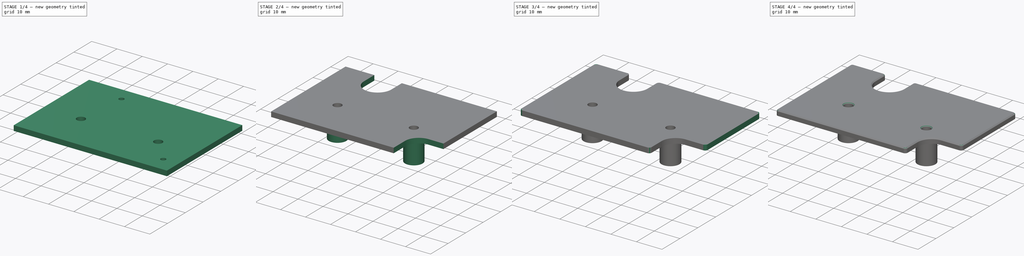
[diagram: build sequence overview — one tinted view per stage of 4, left to right]
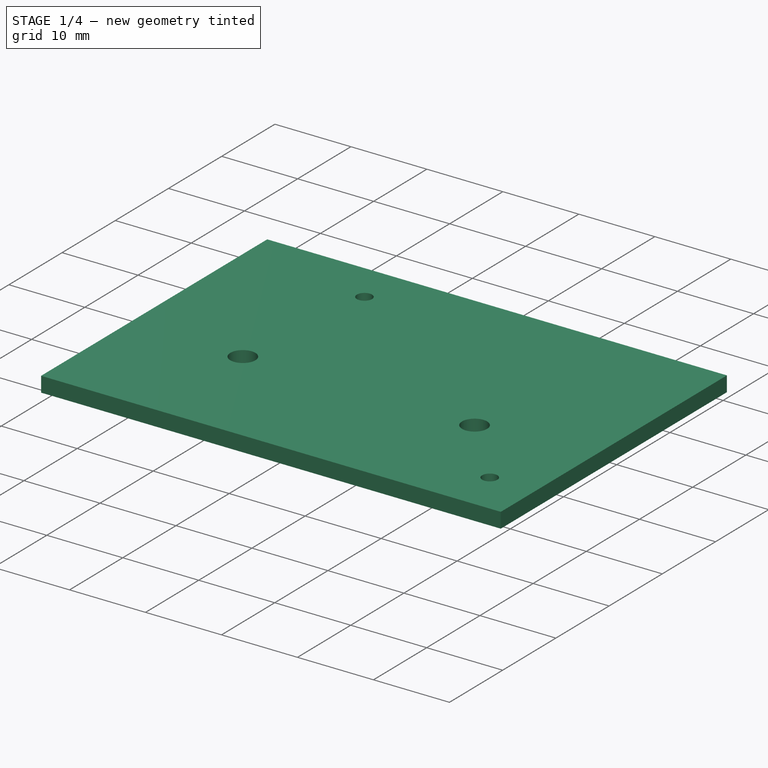
[diagram: stage 1 of 4 — iso view after this stage's code; geometry added in this stage tinted green]
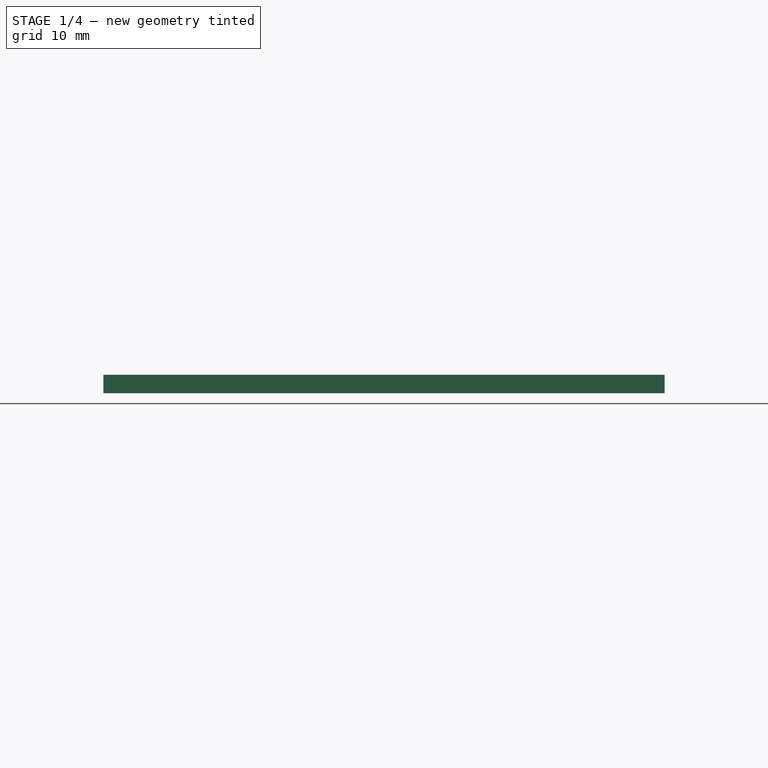
[diagram: stage 1 of 4 — front view after this stage's code; geometry added in this stage tinted green]
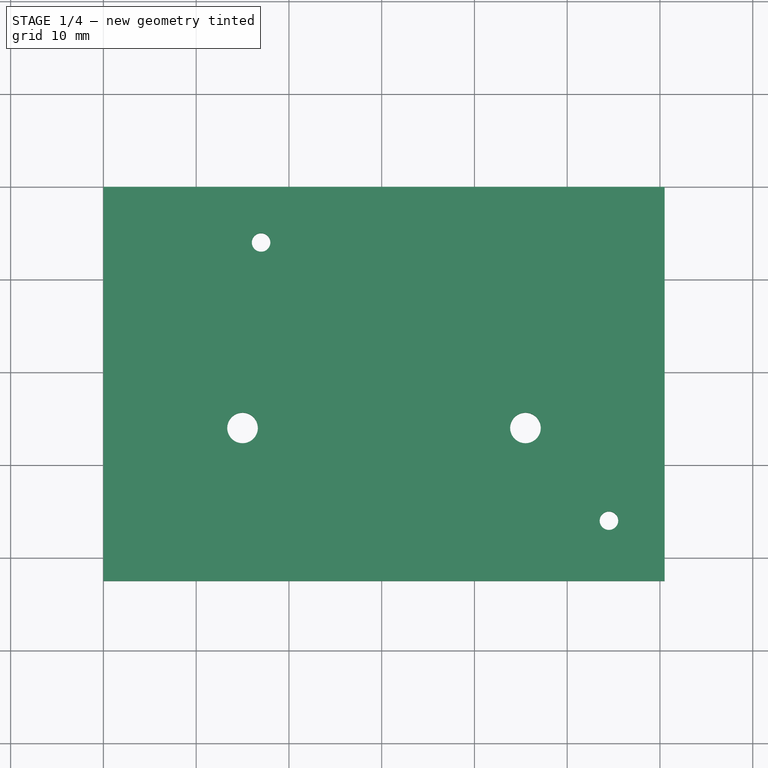
[diagram: stage 1 of 4 — top view after this stage's code; geometry added in this stage tinted green]
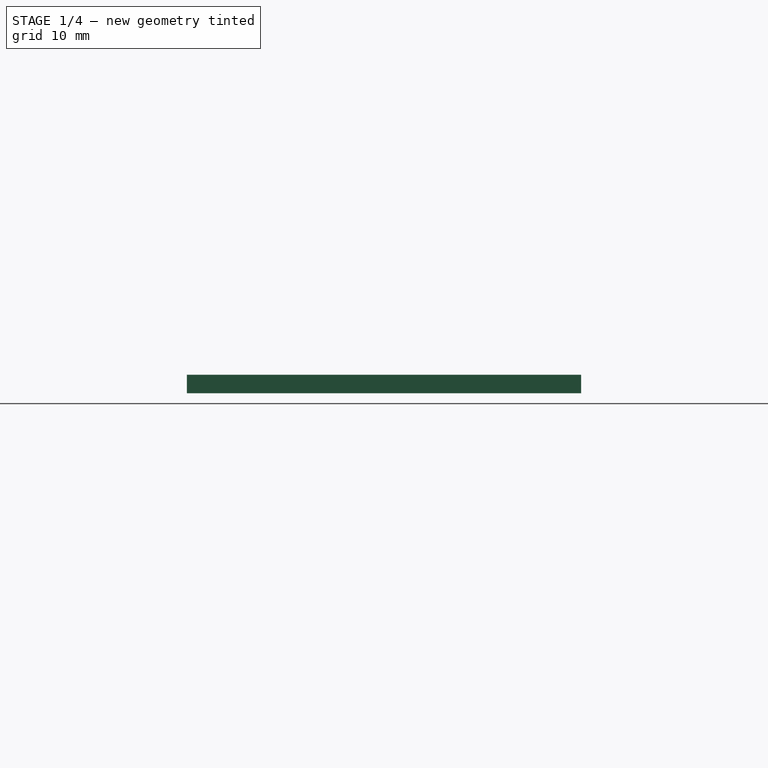
[diagram: stage 1 of 4 — right view after this stage's code; geometry added in this stage tinted green]
FCSTD DOCUMENT  (FreeCAD 0.21R33675 (Git))
Label: psu-cover
License: All rights reserved
LicenseURL: http://en.wikipedia.org/wiki/All_rights_reserved
objects: Part::Feature×23, App::Part×23, Sketcher::SketchObject×4, PartDesign::Pad×4, PartDesign::Pocket×2, PartDesign::Chamfer×2, App::DocumentObjectGroup×1, PartDesign::Fillet×1, PartDesign::Body×1
note: 46 computed .brp shape members not serialized (recipe doc carries the construction recipe); baked Part::Feature solids carry a one-line shape summary decoded from their .brp

FEATURE [Part::Feature] Part__Feature  label="SOLID"
  shape: bbox 2 x 1.2 x 0.45 mm, 26 faces (baked)
FEATURE [App::Part] R_0805_2012Metric
  Group = -> [Part__Feature]
  Origin = -> Origin
  Placement = pos=(129.475,-66,1.65) rot=(0,0,1;3.14159rad)
FEATURE [Part::Feature] Part__Feature001  label="SOLID001"
  shape: bbox 2 x 1.25 x 1.1 mm, 50 faces (baked)
FEATURE [App::Part] LED_0805_2012Metric
  Group = -> [Part__Feature001]
  Origin = -> Origin001
  Placement = pos=(146.5,-74.5,1.65) rot=(0,0,1;0rad)
FEATURE [Part::Feature] Part__Feature002  label="SOLID002"
  shape: bbox 2 x 1.2 x 0.45 mm, 26 faces (baked)
FEATURE [App::Part] R_0805_2012Metric001
  Group = -> [Part__Feature002]
  Origin = -> Origin002
  Placement = pos=(104.475,-66.5,1.65) rot=(0,0,1;3.14159rad)
FEATURE [Part::Feature] Part__Feature003  label="SOLID003"
  shape: bbox 2 x 1.2 x 0.45 mm, 26 faces (baked)
FEATURE [App::Part] R_0805_2012Metric002
  Group = -> [Part__Feature003]
  Origin = -> Origin003
  Placement = pos=(113.025,-57.5,1.65) rot=(0,0,1;0rad)
FEATURE [Part::Feature] Part__Feature004  label="SOLID004"
  shape: bbox 2 x 1.2 x 0.45 mm, 26 faces (baked)
FEATURE [App::Part] R_0805_2012Metric003
  Group = -> [Part__Feature004]
  Origin = -> Origin004
  Placement = pos=(150.5,-74.5,1.65) rot=(0,0,1;0rad)
FEATURE [Part::Feature] Part__Feature005  label="SOLID005"
  shape: bbox 2 x 1.2 x 0.45 mm, 26 faces (baked)
FEATURE [App::Part] R_0805_2012Metric004
  Group = -> [Part__Feature005]
  Origin = -> Origin005
  Placement = pos=(99.975,-66.5,1.65) rot=(0,0,1;0rad)
FEATURE [Part::Feature] Part__Feature006  label="SOLID006"
  shape: bbox 7.874 x 4.93 x 6.98 mm, 80 faces (baked)
FEATURE [App::Part] DIP_4_W7_62mm  label="DIP-4_W7.62mm"
  Group = -> [Part__Feature006]
  Origin = -> Origin006
  Placement = pos=(108.5,-60.46,1.65) rot=(0,0,1;0rad)
FEATURE [Part::Feature] Part__Feature007  label="SOLID007"
  shape: bbox 7.874 x 4.93 x 6.98 mm, 80 faces (baked)
FEATURE [App::Part] DIP_4_W7_62mm001  label="DIP-4_W7.62mm001"
  Group = -> [Part__Feature007]
  Origin = -> Origin007
  Placement = pos=(143.88,-63,1.65) rot=(0,0,1;0rad)
FEATURE [Part::Feature] Part__Feature008  label="SOLID008"
  shape: bbox 7.874 x 4.93 x 6.98 mm, 80 faces (baked)
FEATURE [App::Part] DIP_4_W7_62mm002  label="DIP-4_W7.62mm002"
  Group = -> [Part__Feature008]
  Origin = -> Origin008
  Placement = pos=(133.38,-63,1.65) rot=(0,0,1;0rad)
FEATURE [Part::Feature] Part__Feature009  label="SOLID009"
  shape: bbox 7.874 x 4.93 x 6.98 mm, 80 faces (baked)
FEATURE [App::Part] DIP_4_W7_62mm003  label="DIP-4_W7.62mm003"
  Group = -> [Part__Feature009]
  Origin = -> Origin009
  Placement = pos=(97,-69.5,1.65) rot=(0,0,1;0rad)
FEATURE [Part::Feature] Part__Feature010  label="SOLID010"
  shape: bbox 2 x 1.25 x 1.25 mm, 28 faces (baked)
FEATURE [App::Part] C_0805_2012Metric
  Group = -> [Part__Feature010]
  Origin = -> Origin010
  Placement = pos=(129.5,-62.5,1.65) rot=(0,0,1;0rad)
FEATURE [Part::Feature] Part__Feature011  label="SOLID011"
  shape: bbox 12.36 x 12.78 x 12 mm, 48 faces (baked)
FEATURE [App::Part] CP_Radial_D10_0mm_P5_00mm  label="CP_Radial_D10.0mm_P5.00mm"
  Group = -> [Part__Feature011]
  Origin = -> Origin011
  Placement = pos=(112,-53.5,1.65) rot=(0,0,1;1.5708rad)
FEATURE [Part::Feature] Part__Feature012  label="SOLID012"
  shape: bbox 12.36 x 12.78 x 12 mm, 48 faces (baked)
FEATURE [App::Part] CP_Radial_D10_0mm_P5_00mm001  label="CP_Radial_D10.0mm_P5.00mm001"
  Group = -> [Part__Feature012]
  Origin = -> Origin012
  Placement = pos=(149.5,-78.5,1.65) rot=(0,0,-1;1.5708rad)
FEATURE [Part::Feature] Part__Feature013  label="SOLID013"
  shape: bbox 3.8 x 1.6 x 1.25 mm, 67 faces (baked)
FEATURE [App::Part] D_SOD_123  label="D_SOD-123"
  Group = -> [Part__Feature013]
  Origin = -> Origin013
  Placement = pos=(98,-83.4,1.65) rot=(0,0,-1;1.5708rad)
FEATURE [Part::Feature] Part__Feature014  label="SOLID014"
  shape: bbox 2.54 x 5.08 x 11.54 mm, 52 faces (baked)
FEATURE [App::Part] PinHeader_1x02_P2_54mm_Vertical  label="PinHeader_1x02_P2.54mm_Vertical"
  Group = -> [Part__Feature014]
  Origin = -> Origin014
  Placement = pos=(119.5,-72.5,1.65) rot=(0,0,1;1.5708rad)
FEATURE [Part::Feature] Part__Feature015  label="SOLID015"
  shape: bbox 2 x 1.2 x 0.45 mm, 26 faces (baked)
FEATURE [App::Part] R_0805_2012Metric005
  Group = -> [Part__Feature015]
  Origin = -> Origin015
  Placement = pos=(99,-75,1.65) rot=(0,0,1;0rad)
FEATURE [Part::Feature] Part__Feature016  label="SOLID016"
  shape: bbox 2 x 1.2 x 0.45 mm, 26 faces (baked)
FEATURE [App::Part] R_0805_2012Metric006
  Group = -> [Part__Feature016]
  Origin = -> Origin016
  Placement = pos=(124,-68,1.65) rot=(0,0,1;1.5708rad)
FEATURE [Part::Feature] Part__Feature017  label="SOLID017"
  shape: bbox 7.874 x 9.27 x 6.98 mm, 148 faces (baked)
FEATURE [App::Part] DIP_8_W7_62mm  label="DIP-8_W7.62mm"
  Group = -> [Part__Feature017]
  Origin = -> Origin017
  Placement = pos=(101.5,-77.5,1.65) rot=(0,0,1;0rad)
FEATURE [Part::Feature] Part__Feature018  label="SOLID018"
  shape: bbox 7.874 x 4.93 x 6.98 mm, 80 faces (baked)
FEATURE [App::Part] DIP_4_W7_62mm004  label="DIP-4_W7.62mm004"
  Group = -> [Part__Feature018]
  Origin = -> Origin018
  Placement = pos=(127,-69,1.65) rot=(0,0,1;0rad)
FEATURE [Part::Feature] Part__Feature019  label="SOLID019"
  shape: bbox 2 x 1.2 x 0.45 mm, 26 faces (baked)
FEATURE [App::Part] R_0805_2012Metric007
  Group = -> [Part__Feature019]
  Origin = -> Origin019
  Placement = pos=(115.75,-65.75,1.65) rot=(0,0,1;3.14159rad)
FEATURE [Part::Feature] Part__Feature020  label="SOLID020"
  shape: bbox 2 x 1.2 x 0.45 mm, 26 faces (baked)
FEATURE [App::Part] R_0805_2012Metric008
  Group = -> [Part__Feature020]
  Origin = -> Origin020
  Placement = pos=(126.25,-63.025,1.65) rot=(0,0,1;1.5708rad)
FEATURE [Part::Feature] Part__Feature021  label="SOLID021"
  shape: bbox 2 x 1.25 x 1.25 mm, 28 faces (baked)
FEATURE [App::Part] C_0805_2012Metric001
  Group = -> [Part__Feature021]
  Origin = -> Origin021
  Placement = pos=(120.025,-67,1.65) rot=(0,0,1;3.14159rad)
FEATURE [Part::Feature] Part__Feature022  label="COMPOUND"
  shape: bbox 60.5 x 42.5 x 1.6 mm, 74 faces (baked)
FEATURE [App::Part] Open_CASCADE_STEP_translator_7_5_1  label="Open CASCADE STEP translator 7.5 1"
  Group = -> [R_0805_2012Metric,LED_0805_2012Metric,R_0805_2012Metric001,R_0805_2012Metric002,R_0805_2012Metric003,R_0805_2012Metric004,DIP_4_W7_62mm,DIP_4_W7_62mm001,DIP_4_W7_62mm002,DIP_4_W7_62mm003,C_0805_2012Metric,CP_Radial_D10_0mm_P5_00mm,CP_Radial_D10_0mm_P5_00mm001,D_SOD_123,PinHeader_1x02_P2_54mm_Vertical,R_0805_2012Metric005,R_0805_2012Metric006,DIP_8_W7_62mm,DIP_4_W7_62mm004,R_0805_2012Metric007,+3 more]
  Origin = -> Origin022
FEATURE [App::DocumentObjectGroup] Measurements
FEATURE [Sketcher::SketchObject] Sketch
  FullyConstrained = true
  MapMode = 5
  Support = -> [XY_Plane023]
  sketch-geometry (4):
    g0: LineSegment StartX=0 StartY=0 StartZ=0 EndX=60.5 EndY=0 EndZ=0
    g1: LineSegment StartX=60.5 StartY=0 StartZ=0 EndX=60.5 EndY=-42.5 EndZ=0
    g2: LineSegment StartX=60.5 StartY=-42.5 StartZ=0 EndX=0 EndY=-42.5 EndZ=0
    g3: LineSegment StartX=0 StartY=-42.5 StartZ=0 EndX=0 EndY=0 EndZ=0
  constraints (11):
    c: Coincident(g0,g1)
    c: Coincident(g1,g2)
    c: Coincident(g2,g3)
    c: Coincident(g3,g0)
    c: Horizontal(g0)
    c: Horizontal(g2)
    c: Vertical(g1)
    c: Vertical(g3)
    c: Coincident(g0,g-1)
    c: DistanceX(g0,g0) = 60.5
    c: DistanceY(g1,g1) = 42.5
FEATURE [PartDesign::Pad] Pad
  Direction = (0,0,1)
  Length = 2
  Length2 = 10
  Profile = -> Sketch
  ReferenceAxis = -> Sketch [N_Axis]
  Type = 0
FEATURE [Sketcher::SketchObject] Sketch001
  ExternalGeometry = -> [Pad]
  FullyConstrained = true
  MapMode = 5
  Placement = pos=(0,0,2) rot=(0,0,1;0rad)
  Support = -> [Pad]
  sketch-geometry (4):
    g0: Circle CenterX=17 CenterY=-6 CenterZ=0 NormalX=0 NormalY=0 NormalZ=1 AngleXU=0 Radius=1
    g1: Circle CenterX=54.5 CenterY=-36 CenterZ=0 NormalX=0 NormalY=0 NormalZ=1 AngleXU=0 Radius=1
    g2: Circle CenterX=15 CenterY=-26 CenterZ=0 NormalX=0 NormalY=0 NormalZ=1 AngleXU=0 Radius=1.65
    g3: Circle CenterX=45.5 CenterY=-26 CenterZ=0 NormalX=0 NormalY=0 NormalZ=1 AngleXU=0 Radius=1.65
  constraints (12):
    c: DistanceX(g-1,g0) = 17
    c: DistanceX(g1,g-3) = 6
    c: DistanceY(g-3,g1) = 6.5
    c: DistanceY(g0,g-1) = 6
    c: Radius(g0) = 1
    c: Equal(g0,g1)
    c: Horizontal(g3,g2)
    c: DistanceY(g-3,g3) = 16.5
    c: Equal(g2,g3)
    c: Radius(g3) = 1.65
    c: DistanceX(g-4,g2) = 15
    c: DistanceX(g3,g-4) = 15
FEATURE [PartDesign::Pocket] Pocket
  BaseFeature = -> Pad
  Direction = (0,0,-1)
  Length = 5
  Length2 = 5
  Profile = -> Sketch001
  ReferenceAxis = -> Sketch001 [N_Axis]
  Type = 1
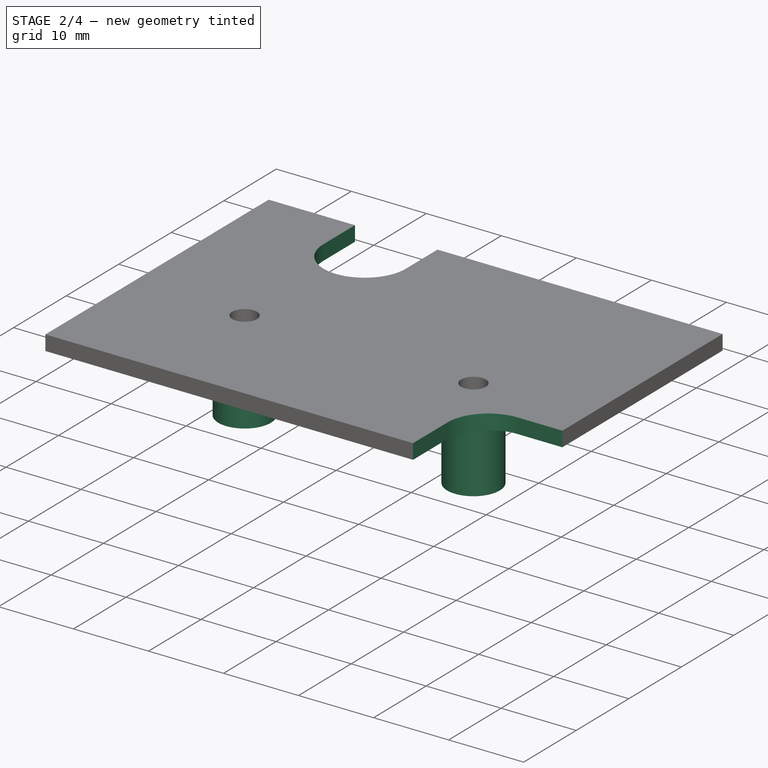
[diagram: stage 2 of 4 — iso view after this stage's code; geometry added in this stage tinted green]
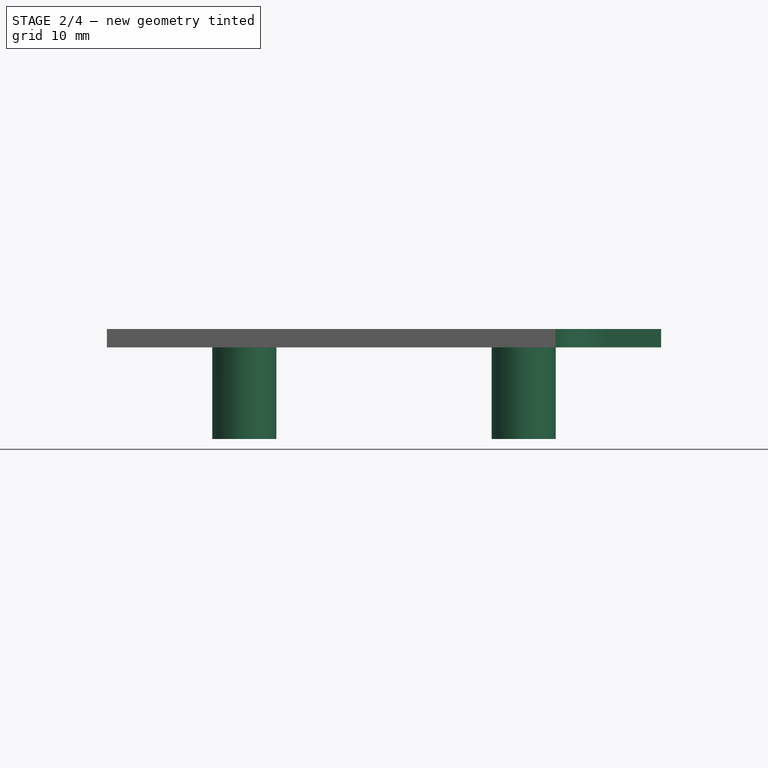
[diagram: stage 2 of 4 — front view after this stage's code; geometry added in this stage tinted green]
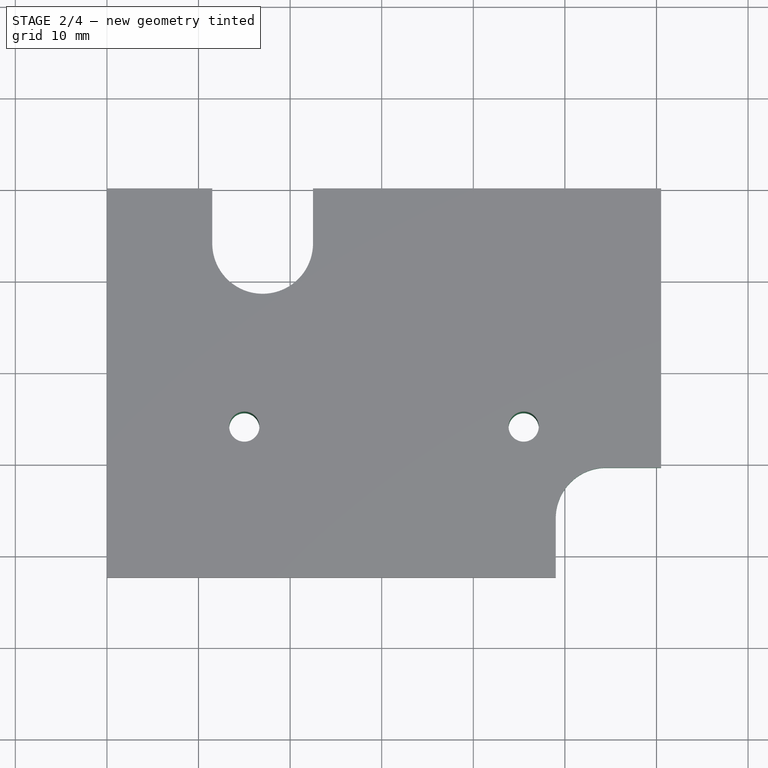
[diagram: stage 2 of 4 — top view after this stage's code; geometry added in this stage tinted green]
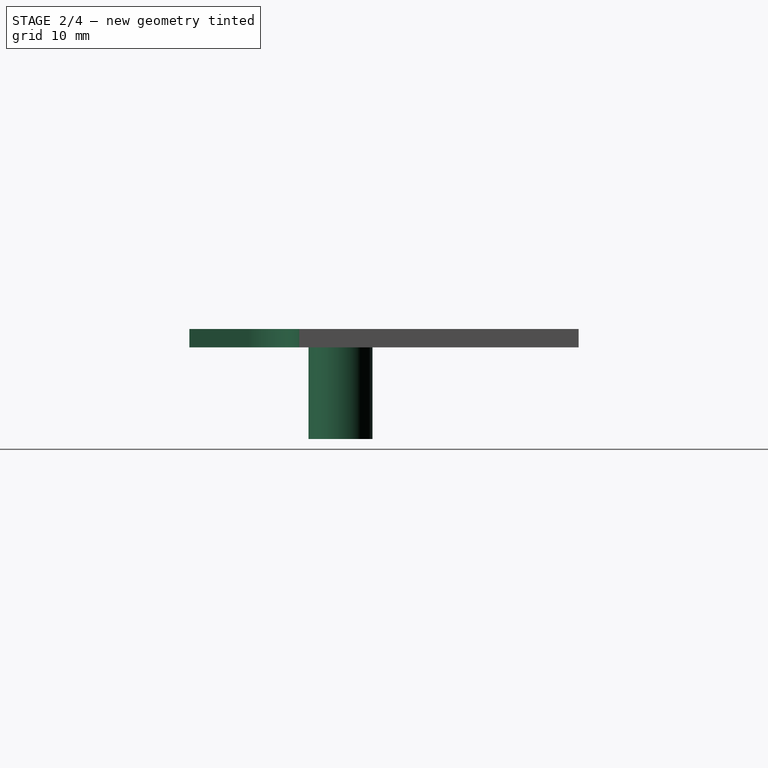
[diagram: stage 2 of 4 — right view after this stage's code; geometry added in this stage tinted green]
FEATURE [Sketcher::SketchObject] Sketch002
  ExternalGeometry = -> [Pocket]
  FullyConstrained = true
  MapMode = 5
  Placement = pos=(0,0,2) rot=(0,0,1;0rad)
  Support = -> [Pocket]
  sketch-geometry (9):
    g0: ArcOfCircle CenterX=17 CenterY=-6 CenterZ=0 NormalX=0 NormalY=0 NormalZ=1 AngleXU=0 Radius=5.5 StartAngle=3.14159 EndAngle=6.28319
    g1: ArcOfCircle CenterX=54.5 CenterY=-36 CenterZ=0 NormalX=0 NormalY=0 NormalZ=1 AngleXU=0 Radius=5.5 StartAngle=1.5708 EndAngle=3.14159
    g2: LineSegment StartX=11.5 StartY=-6 StartZ=0 EndX=11.5 EndY=0 EndZ=0
    g3: LineSegment StartX=22.5 StartY=-6 StartZ=0 EndX=22.5 EndY=0 EndZ=0
    g4: LineSegment StartX=22.5 StartY=0 StartZ=0 EndX=11.5 EndY=0 EndZ=0
    g5: LineSegment StartX=54.5 StartY=-30.5 StartZ=0 EndX=60.5 EndY=-30.5 EndZ=0
    g6: LineSegment StartX=49 StartY=-36 StartZ=0 EndX=49 EndY=-42.5 EndZ=0
    g7: LineSegment StartX=49 StartY=-42.5 StartZ=0 EndX=60.5 EndY=-42.5 EndZ=0
    g8: LineSegment StartX=60.5 StartY=-42.5 StartZ=0 EndX=60.5 EndY=-30.5 EndZ=0
  constraints (26):
    c: Coincident(g0,g-6)
    c: Coincident(g1,g-5)
    c: Horizontal(g0,g0)
    c: Horizontal(g0,g0)
    c: Vertical(g1,g1)
    c: Horizontal(g1,g1)
    c: Coincident(g2,g0)
    c: PointOnObject(g2,g-1)
    c: Coincident(g3,g0)
    c: PointOnObject(g3,g-1)
    c: Vertical(g3)
    c: Coincident(g4,g3)
    c: Coincident(g4,g2)
    c: Coincident(g5,g1)
    c: PointOnObject(g5,g-4)
    c: Horizontal(g5)
    c: Coincident(g6,g1)
    c: PointOnObject(g6,g-3)
    c: Vertical(g6)
    c: Coincident(g7,g6)
    c: Coincident(g7,g-4)
    c: Coincident(g8,g7)
    c: Coincident(g8,g5)
    c: Vertical(g2)
    c: Equal(g1,g0)
    c: Radius(g1) = 5.5
FEATURE [PartDesign::Pocket] Pocket001
  BaseFeature = -> Pocket
  Direction = (0,0,-1)
  Length = 5
  Length2 = 5
  Profile = -> Sketch002
  ReferenceAxis = -> Sketch002 [N_Axis]
  Type = 1
FEATURE [Sketcher::SketchObject] Sketch003
  ExternalGeometry = -> [Pocket001]
  FullyConstrained = true
  MapMode = 5
  Placement = pos=(0,0,0) rot=(1,0,0;3.14159rad)
  Support = -> [Pocket001]
  sketch-geometry (4):
    g0: Circle CenterX=15 CenterY=26 CenterZ=0 NormalX=0 NormalY=0 NormalZ=1 AngleXU=0 Radius=1.65
    g1: Circle CenterX=45.5 CenterY=26 CenterZ=0 NormalX=0 NormalY=0 NormalZ=1 AngleXU=0 Radius=1.65
    g2: Circle CenterX=45.5 CenterY=26 CenterZ=0 NormalX=0 NormalY=0 NormalZ=1 AngleXU=0 Radius=3.5
    g3: Circle CenterX=15 CenterY=26 CenterZ=0 NormalX=0 NormalY=0 NormalZ=1 AngleXU=0 Radius=3.5
  constraints (8):
    c: Coincident(g0,g-3)
    c: Coincident(g1,g-4)
    c: Coincident(g2,g1)
    c: Coincident(g3,g0)
    c: Equal(g0,g1)
    c: Equal(g1,g-4)
    c: Equal(g3,g2)
    c: Radius(g2) = 3.5
FEATURE [PartDesign::Pad] Pad001
  BaseFeature = -> Pocket001
  Direction = (0,0,-1)
  Length = 10
  Length2 = 10
  Profile = -> Sketch003
  ReferenceAxis = -> Sketch003 [N_Axis]
  Type = 0
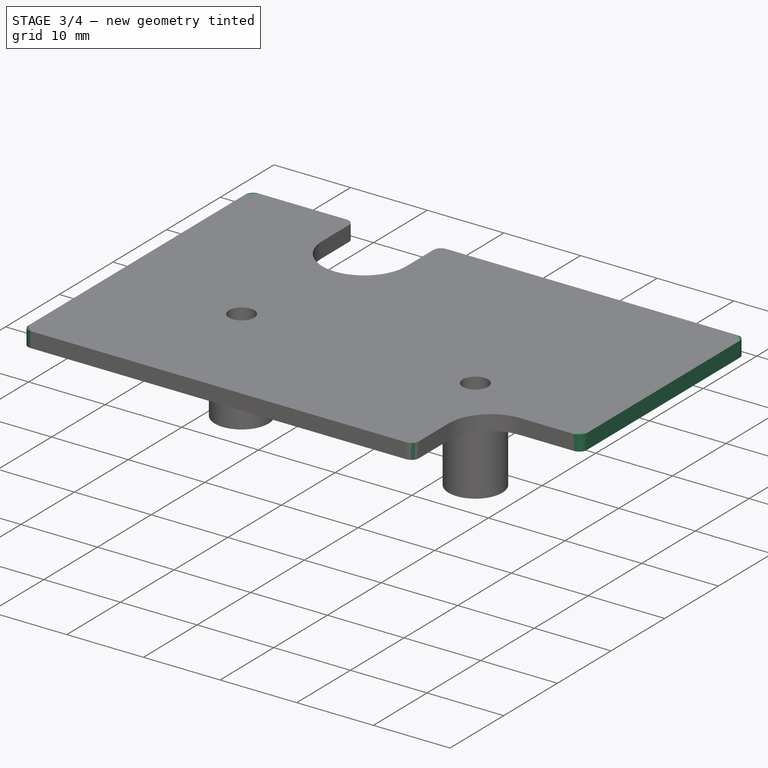
[diagram: stage 3 of 4 — iso view after this stage's code; geometry added in this stage tinted green]
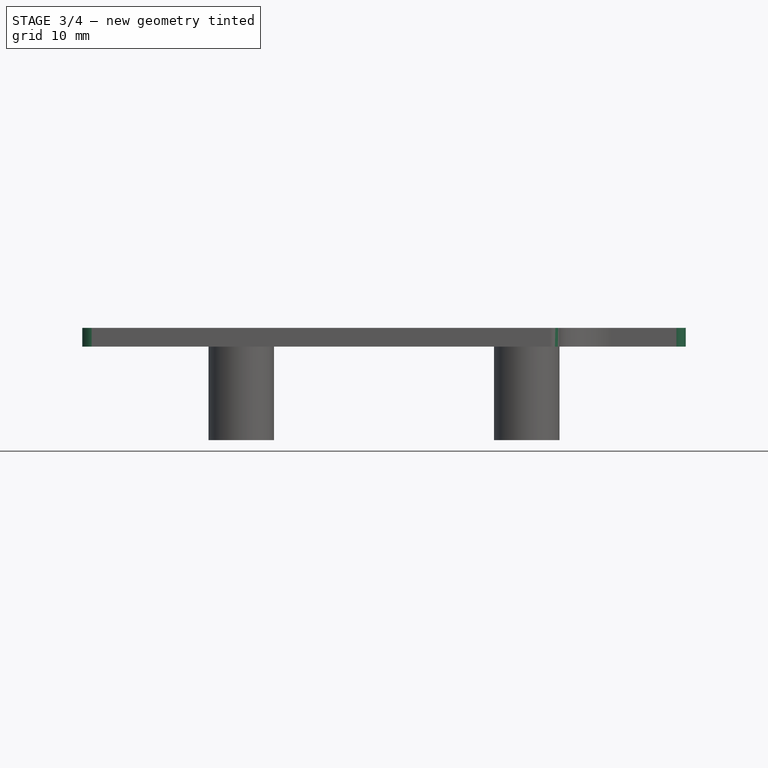
[diagram: stage 3 of 4 — front view after this stage's code; geometry added in this stage tinted green]
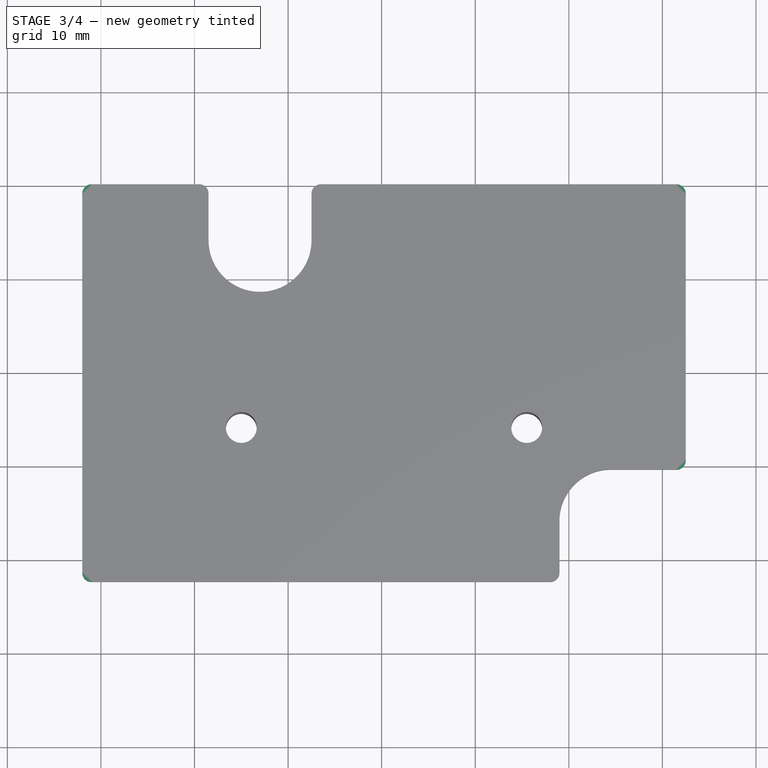
[diagram: stage 3 of 4 — top view after this stage's code; geometry added in this stage tinted green]
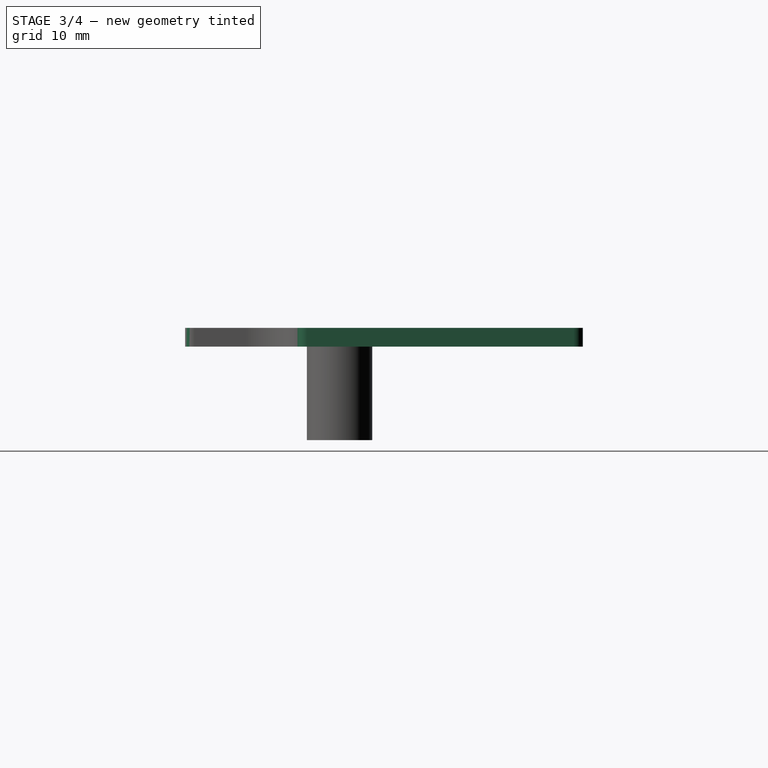
[diagram: stage 3 of 4 — right view after this stage's code; geometry added in this stage tinted green]
FEATURE [PartDesign::Pad] Pad002
  BaseFeature = -> Pad001
  Direction = (-1,0,0)
  Length = 2
  Length2 = 10
  Profile = -> Pad001 [Face5]
  Type = 0
FEATURE [PartDesign::Pad] Pad003
  BaseFeature = -> Pad002
  Direction = (1,0,0)
  Length = 2
  Length2 = 10
  Profile = -> Pad002 [Face14]
  Refine = true
  Type = 0
FEATURE [PartDesign::Fillet] Fillet
  Base = -> Pad003 [Edge2,Edge7,Edge15,Edge18,Edge21,Edge30,Edge1]
  BaseFeature = -> Pad003
  Radius = 1
  SupportTransform = false
  UseAllEdges = false
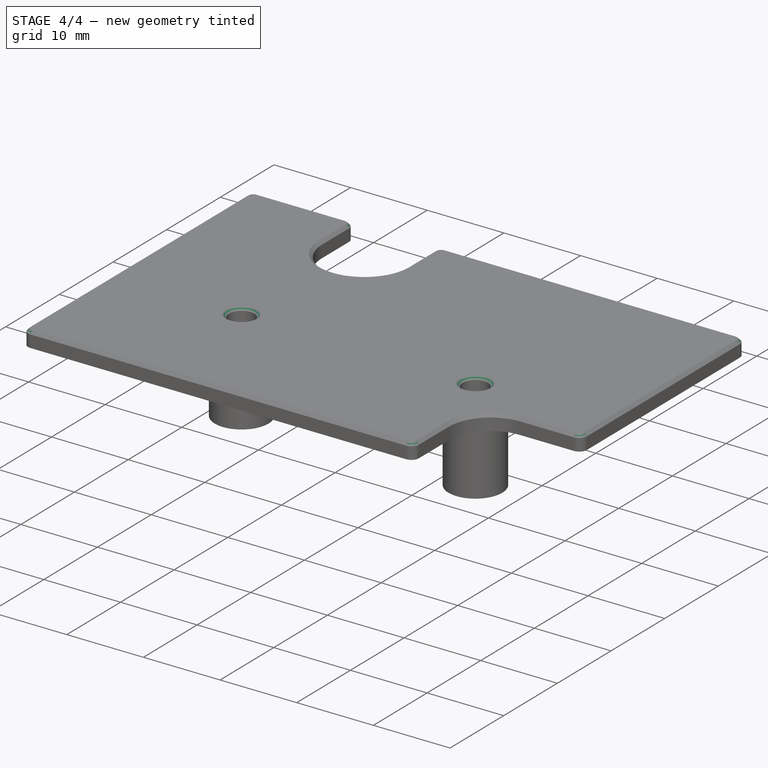
[diagram: stage 4 of 4 — iso view after this stage's code; geometry added in this stage tinted green]
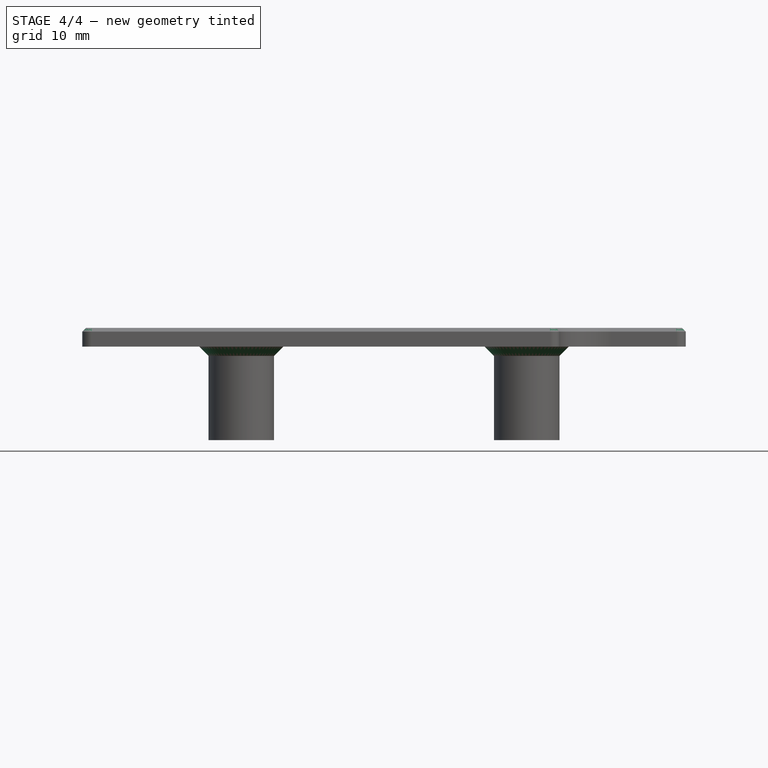
[diagram: stage 4 of 4 — front view after this stage's code; geometry added in this stage tinted green]
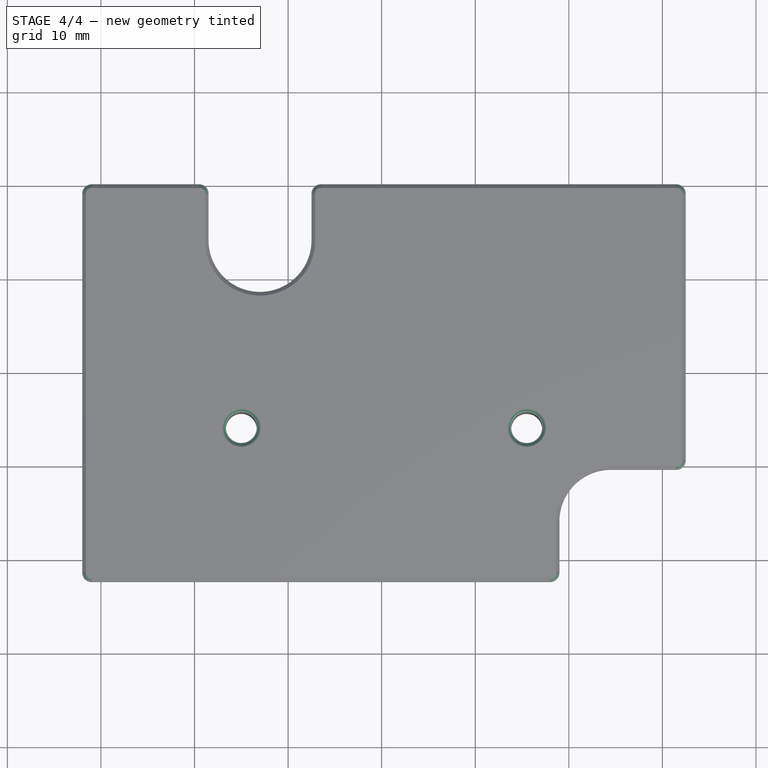
[diagram: stage 4 of 4 — top view after this stage's code; geometry added in this stage tinted green]
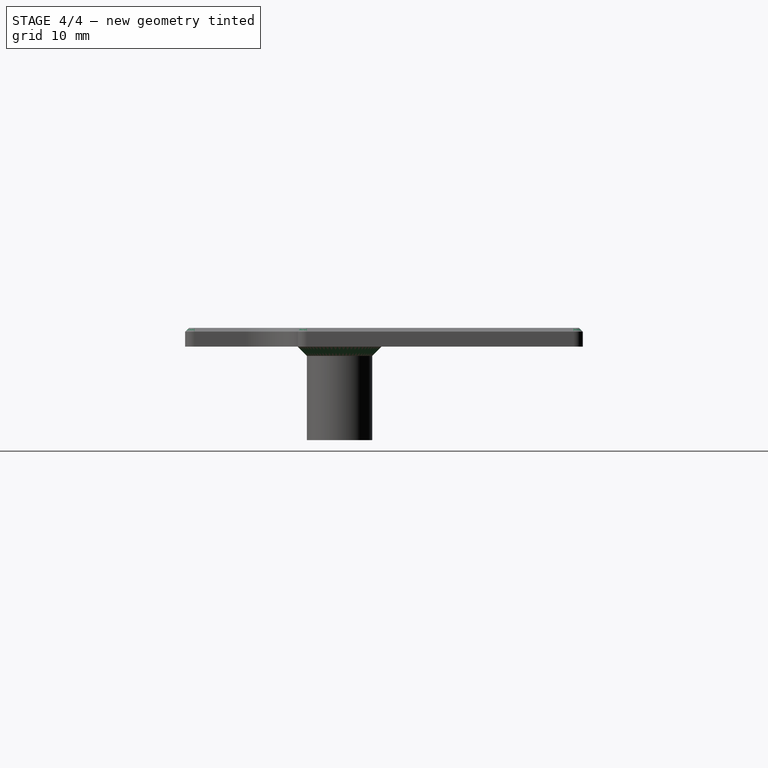
[diagram: stage 4 of 4 — right view after this stage's code; geometry added in this stage tinted green]
FEATURE [PartDesign::Chamfer] Chamfer
  Angle = 45
  Base = -> Fillet [Face5]
  BaseFeature = -> Fillet
  ChamferType = 0
  FlipDirection = false
  Size = 0.4
  Size2 = 1
  SupportTransform = false
  UseAllEdges = false
FEATURE [PartDesign::Chamfer] Chamfer001
  Angle = 45
  Base = -> Chamfer [Edge27,Edge28]
  BaseFeature = -> Chamfer
  ChamferType = 0
  FlipDirection = false
  Size = 1
  Size2 = 1
  SupportTransform = false
  UseAllEdges = false
FEATURE [PartDesign::Body] Body  label="psu-cover"
  Group = -> [Sketch,Pad,Sketch001,Pocket,Sketch002,Pocket001,Sketch003,Pad001,Pad002,Pad003,Fillet,Chamfer,Chamfer001]
  Origin = -> Origin023
  Tip = -> Chamfer001
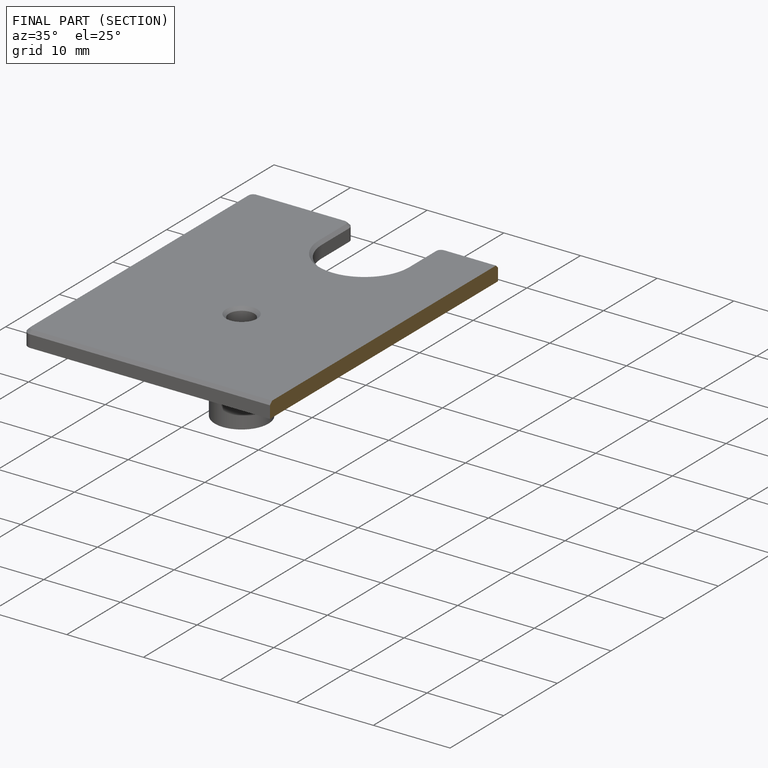
[diagram: finished part — half-section view (interior)]
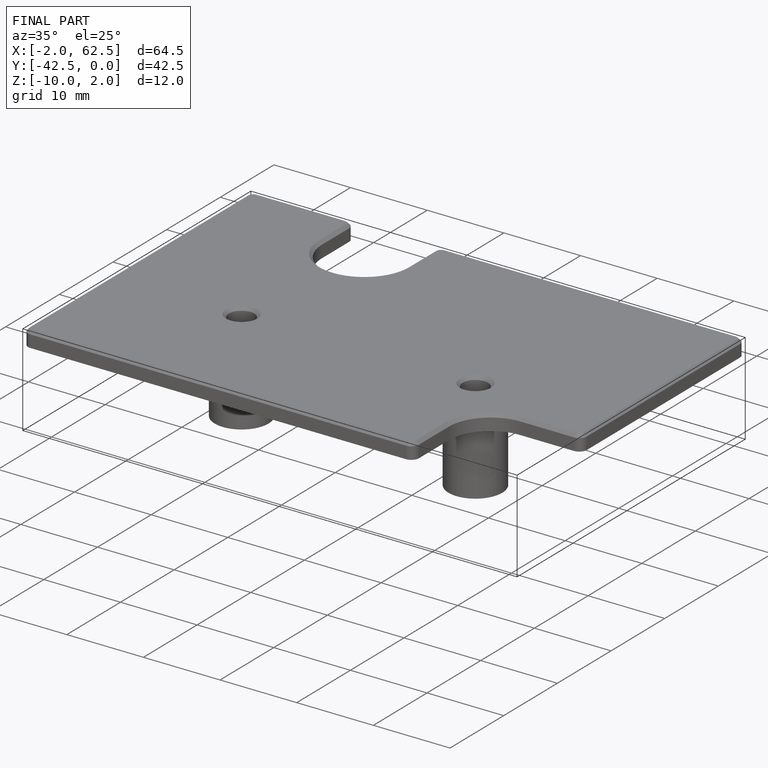
[diagram: finished part — iso view with bounding-box wireframe]
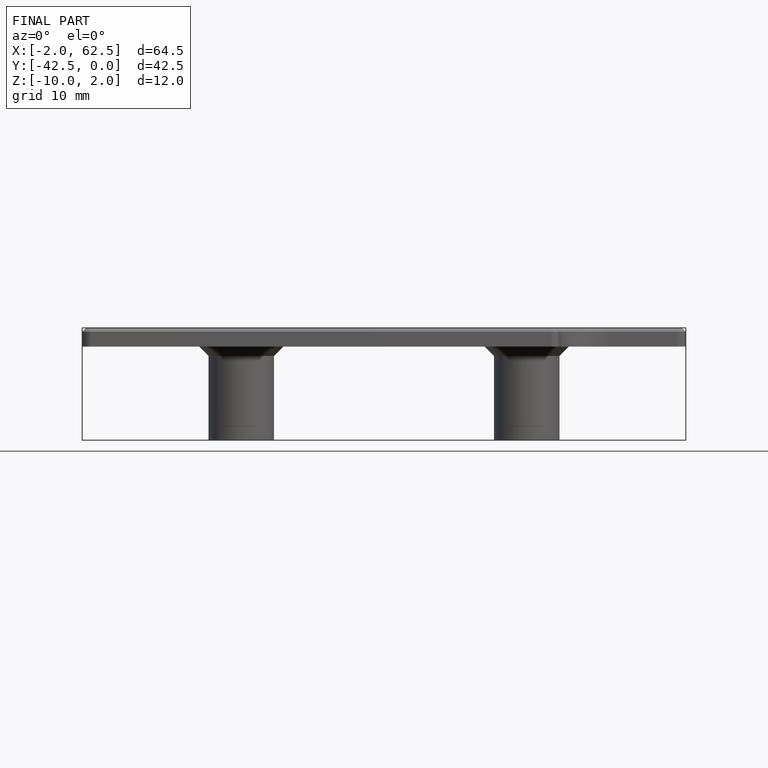
[diagram: finished part — front view with bounding-box wireframe]
